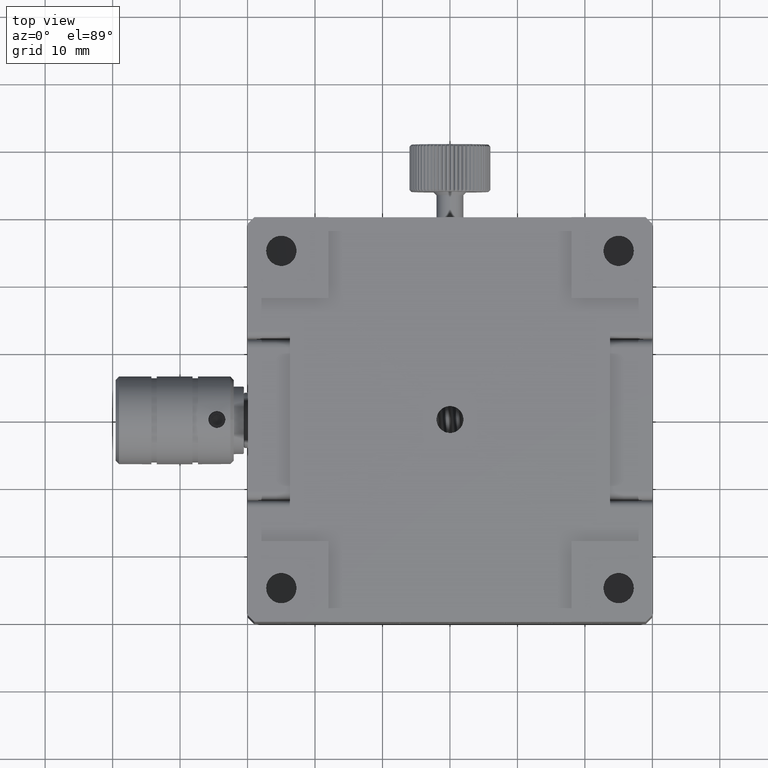
[diagram: clean part render]
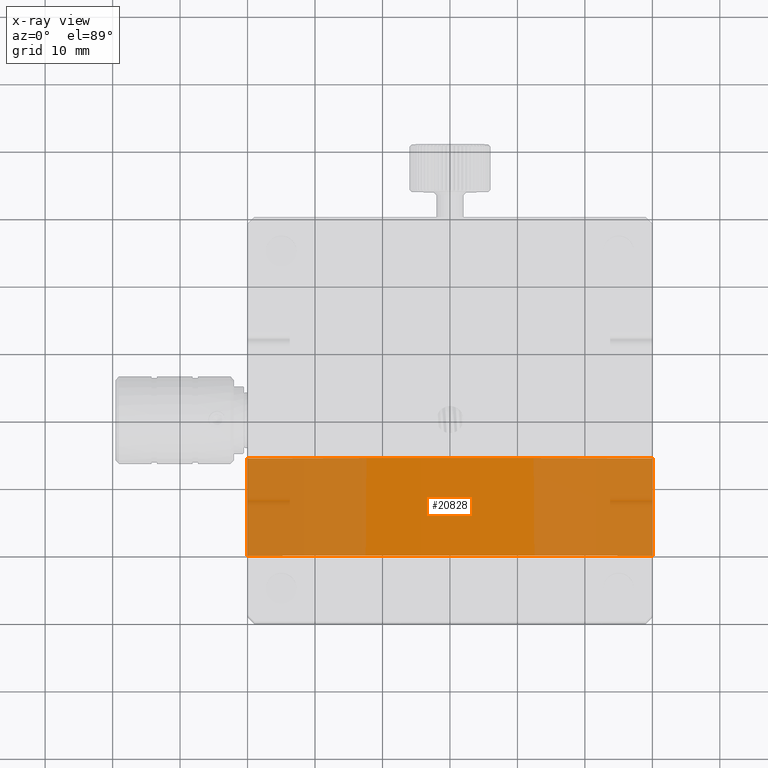
[diagram: x-ray — body ghosted, one internal face saturated and labeled with its STEP entity id]
A machine part, top view, then the same camera in x-ray: the body is ghosted and one INTERNAL B-rep face — a face not visible from any outside direction — is saturated and labeled: STEP entity #20828.
In plain terms, the highlighted cylindrical surface (partial cylindrical patch) has radius 89 mm, axis along (-0, 1, 0).
Its self-contained STEP definition (entity closure, byte-faithful):
#168 = ORIENTED_EDGE ( 'NONE', *, *, #18527, .T. ) ;
#1366 = CARTESIAN_POINT ( 'NONE',  ( 29.99999999999999645, -5.500000000000012434, 83.79140767405687029 ) ) ;
#1393 = VERTEX_POINT ( 'NONE', #15430 ) ;
#1417 = EDGE_CURVE ( 'NONE', #17778, #1393, #26529, .T. ) ;
#2211 = CIRCLE ( 'NONE', #13066, 88.99999999999998579 ) ;
#2828 = CYLINDRICAL_SURFACE ( 'NONE', #22708, 88.99999999999998579 ) ;
#2993 = ORIENTED_EDGE ( 'NONE', *, *, #28801, .F. ) ;
#3110 = LINE ( 'NONE', #14459, #24870 ) ;
#5154 = DIRECTION ( 'NONE',  ( 0.000000000000000000, -1.169476500658521720E-16, 1.000000000000000000 ) ) ;
#6352 = CARTESIAN_POINT ( 'NONE',  ( -30.00000000000001421, -19.96410161793584592, 83.79140767405688450 ) ) ;
#10285 = ORIENTED_EDGE ( 'NONE', *, *, #26648, .F. ) ;
#11363 = CARTESIAN_POINT ( 'NONE',  ( 2.184017805255646093E-16, -5.500000000000005329, 6.301729877522655661E-15 ) ) ;
#11698 = FACE_OUTER_BOUND ( 'NONE', #18015, .T. ) ;
#13066 = AXIS2_PLACEMENT_3D ( 'NONE', #11363, #22323, #5154 ) ;
#13598 = CARTESIAN_POINT ( 'NONE',  ( 30.00000000000000711, -29.99999999999998934, 83.79140767405688450 ) ) ;
#14459 = CARTESIAN_POINT ( 'NONE',  ( -30.00000000000001421, -29.99999999999998934, 83.79140767405689871 ) ) ;
#14620 = DIRECTION ( 'NONE',  ( 0.000000000000000000, -1.169476500658521720E-16, 1.000000000000000000 ) ) ;
#15430 = CARTESIAN_POINT ( 'NONE',  ( 30.00000000000000711, -19.96410161793583882, 83.79140767405688450 ) ) ;
#15754 = AXIS2_PLACEMENT_3D ( 'NONE', #34780, #17057, #14620 ) ;
#17057 = DIRECTION ( 'NONE',  ( -3.970941464101185024E-17, 1.000000000000000000, 1.158480047971950664E-16 ) ) ;
#17753 = DIRECTION ( 'NONE',  ( -3.970941464101185024E-17, 1.000000000000000000, 1.158480047971950664E-16 ) ) ;
#17778 = VERTEX_POINT ( 'NONE', #6352 ) ;
#18015 = EDGE_LOOP ( 'NONE', ( #10285, #31994, #2993, #168 ) ) ;
#18527 = EDGE_CURVE ( 'NONE', #25771, #30798, #2211, .T. ) ;
#19820 = DIRECTION ( 'NONE',  ( 0.000000000000000000, -1.169476500658521720E-16, 1.000000000000000000 ) ) ;
#20828 = ADVANCED_FACE ( 'NONE', ( #11698 ), #2828, .T. ) ;
#21983 = VECTOR ( 'NONE', #30363, 1000.000000000000000 ) ;
#22323 = DIRECTION ( 'NONE',  ( 3.970941464101185024E-17, -1.000000000000000000, -1.158480047971950664E-16 ) ) ;
#22708 = AXIS2_PLACEMENT_3D ( 'NONE', #22833, #17753, #19820 ) ;
#22833 = CARTESIAN_POINT ( 'NONE',  ( -1.191282439230357381E-15, 30.00000000000002842, 1.041433404782308372E-14 ) ) ;
#24870 = VECTOR ( 'NONE', #31965, 1000.000000000000000 ) ;
#25771 = VERTEX_POINT ( 'NONE', #1366 ) ;
#26529 = CIRCLE ( 'NONE', #15754, 88.99999999999998579 ) ;
#26648 = EDGE_CURVE ( 'NONE', #17778, #30798, #3110, .T. ) ;
#27717 = LINE ( 'NONE', #13598, #21983 ) ;
#28801 = EDGE_CURVE ( 'NONE', #25771, #1393, #27717, .T. ) ;
#29423 = CARTESIAN_POINT ( 'NONE',  ( -30.00000000000000000, -5.500000000000013323, 83.79140767405688450 ) ) ;
#30363 = DIRECTION ( 'NONE',  ( 3.970941464101183791E-17, -1.000000000000000000, -0.000000000000000000 ) ) ;
#30798 = VERTEX_POINT ( 'NONE', #29423 ) ;
#31965 = DIRECTION ( 'NONE',  ( -3.970941464101183791E-17, 1.000000000000000000, -0.000000000000000000 ) ) ;
#31994 = ORIENTED_EDGE ( 'NONE', *, *, #1417, .T. ) ;
#34780 = CARTESIAN_POINT ( 'NONE',  ( 7.927627890819087674E-16, -19.96410161793583171, 4.626092563900909022E-15 ) ) ;